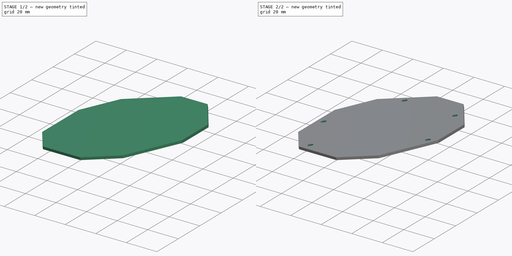
[diagram: build sequence overview — one tinted view per stage of 2, left to right]
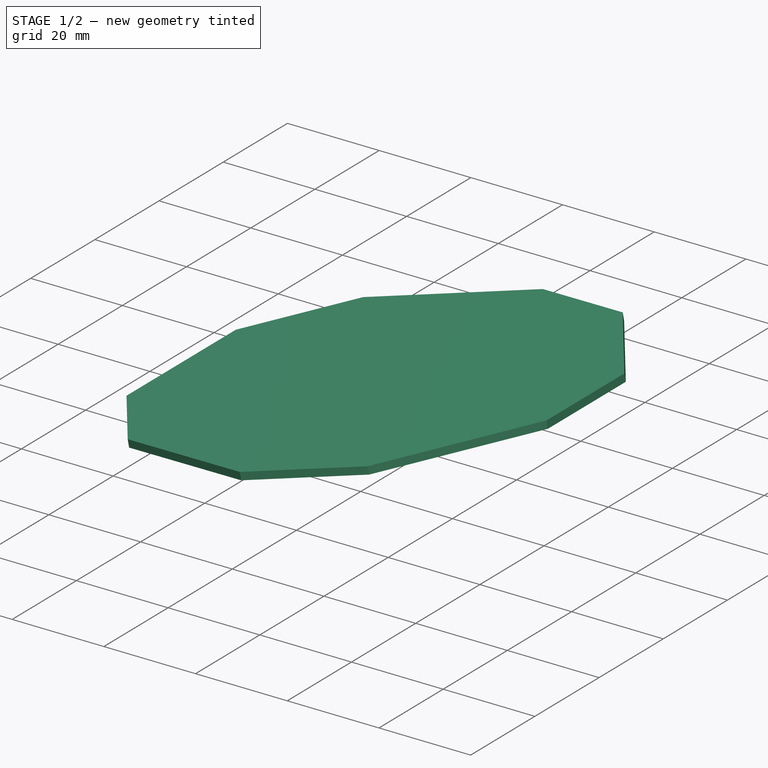
[diagram: stage 1 of 2 — iso view after this stage's code; geometry added in this stage tinted green]
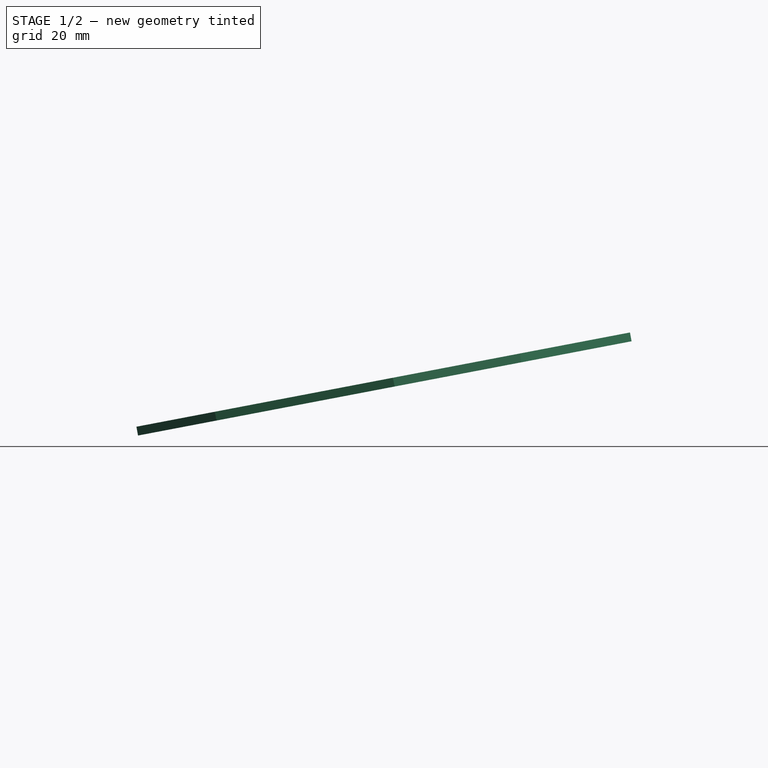
[diagram: stage 1 of 2 — front view after this stage's code; geometry added in this stage tinted green]
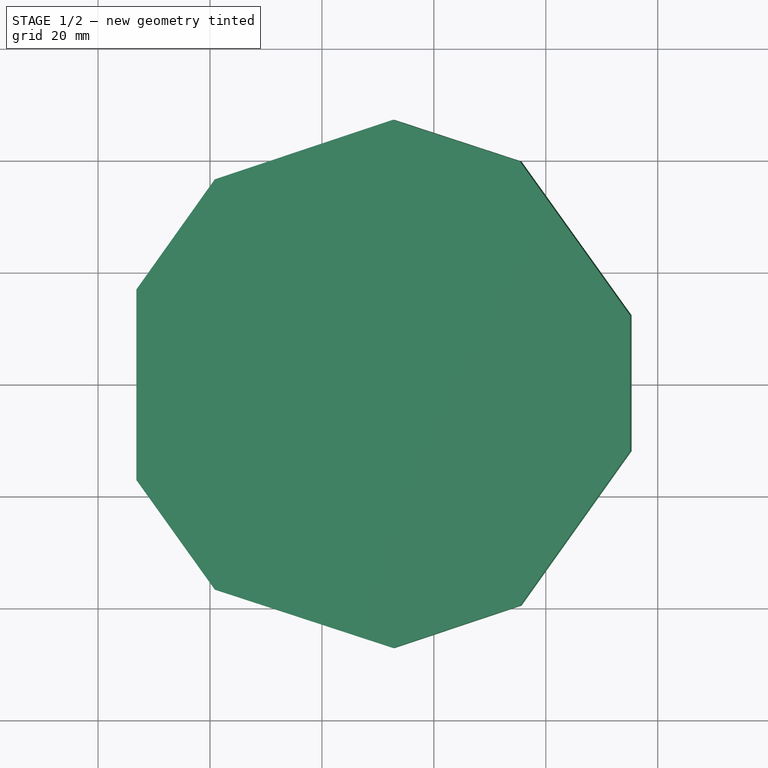
[diagram: stage 1 of 2 — top view after this stage's code; geometry added in this stage tinted green]
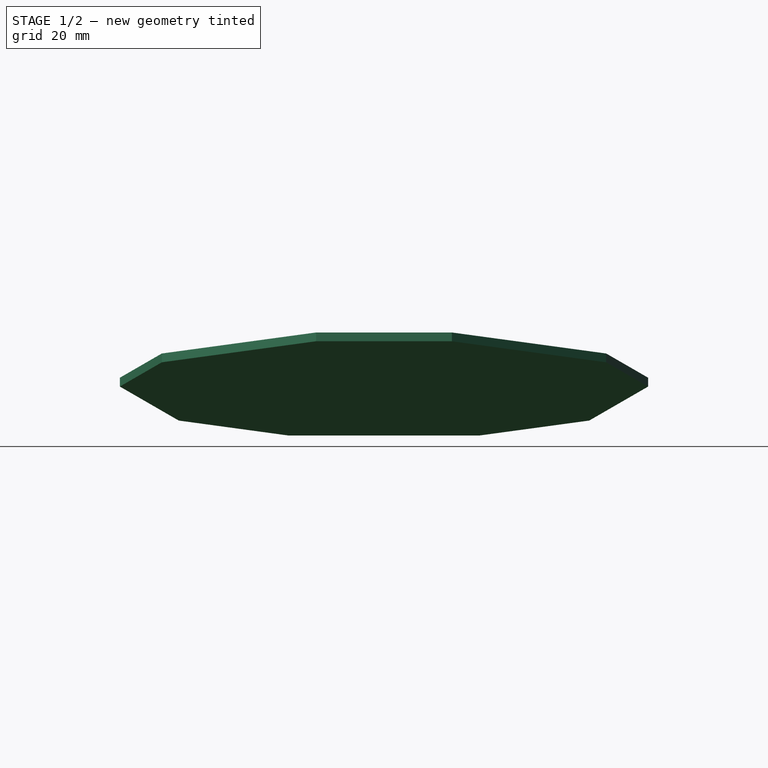
[diagram: stage 1 of 2 — right view after this stage's code; geometry added in this stage tinted green]
FCSTD DOCUMENT  (FreeCAD 0.20R27422 (Git))
Label: inner_assembly
License: All rights reserved
LicenseURL: http://en.wikipedia.org/wiki/All_rights_reserved
objects: App::Link×15, App::DocumentObjectGroup×4, Sketcher::SketchObject×4, PartDesign::SubShapeBinder×3, App::Part×3, PartDesign::CoordinateSystem×1, App::FeaturePython×1, Part::Part2DObjectPython×1, PartDesign::Plane×1, PartDesign::Pad×1, PartDesign::Pocket×1, PartDesign::Body×1
note: 15 computed .brp shape members not serialized (recipe doc carries the construction recipe); baked Part::Feature solids carry a one-line shape summary decoded from their .brp
EXTERNAL_REF file=Inner_rev2.FCStd obj=LCS_1
EXTERNAL_REF file=Inner_rev2.FCStd obj=Part
EXTERNAL_REF file=Inner_rev2.FCStd obj=HoleAxis_3
EXTERNAL_REF file=Inner_rev2.FCStd obj=HoleAxis_2
EXTERNAL_REF file=Inner_rev2.FCStd obj=HoleAxis_10
EXTERNAL_REF file=Inner_rev2.FCStd obj=HoleAxis_19
EXTERNAL_REF file=Inner_rev2.FCStd obj=Part002
EXTERNAL_REF file=Inner_rev2.FCStd obj=HoleAxis_24
EXTERNAL_REF file=Inner_rev2.FCStd obj=Part003
EXTERNAL_REF file=Inner_rev2.FCStd obj=HoleAxis_15
EXTERNAL_REF file=Inner_rev2.FCStd obj=Part001
EXTERNAL_REF file=Inner_rev3.FCStd obj=HoleAxis_3
EXTERNAL_REF file=Inner_rev3.FCStd obj=inner_center_part_rev3

FEATURE [App::DocumentObjectGroup] Parts
FEATURE [PartDesign::CoordinateSystem] LCS_Origin
  AttacherType = Attacher::AttachEngine3D
  MapMode = 2
  Support = -> [X_Axis]
FEATURE [App::FeaturePython] Variables  # WARN: FeaturePython — macro-defined, semantics opaque (R4)
  Type = App::PropertyContainer
FEATURE [App::DocumentObjectGroup] Constraints
FEATURE [App::DocumentObjectGroup] Configurations
FEATURE [App::Link] shell_part
  AssemblyType = Part::Link
  AttachedBy = #LCS_1
  AttachedTo = Parent Assembly#LCS_Origin
  AttachmentOffset = pos=(0,0,0) rot=(-0.57735,-0.57735,0.57735;2.0944rad)
  LinkPlacement = pos=(54.4609,1.74e-14,1.6e-14) rot=(0,-1,0;0.188711rad)
  LinkedObject = -> <external Inner_rev2.FCStd>#Part
  Placement = pos=(54.4609,1.74e-14,1.6e-14) rot=(0,-1,0;0.188711rad)
  SolverId = Asm4EE
  expr: Placement = LCS_Origin.Placement * AttachmentOffset * Inner_rev2#LCS_1.Placement ^ -1
FEATURE [App::Link] shell_part001
  AssemblyType = Part::Link
  AttachedBy = #HoleAxis_3
  AttachedTo = shell_part#HoleAxis_3
  AttachmentOffset = pos=(0,0,0) rot=(1,0,0;3.14159rad)
  LinkPlacement = pos=(54.4609,5.33e-14,7.64e-14) rot=(-0.947228,0.307773,-0.089642;3.08336rad)
  LinkedObject = -> <external Inner_rev2.FCStd>#Part
  Placement = pos=(54.4609,5.33e-14,7.64e-14) rot=(-0.947228,0.307773,-0.089642;3.08336rad)
  SolverId = Asm4EE
  expr: Placement = shell_part.Placement * Inner_rev2#HoleAxis_3.Placement * AttachmentOffset * Inner_rev2#HoleAxis_3.Placement ^ -1
FEATURE [App::Link] shell
  AssemblyType = Part::Link
  AttachedBy = #HoleAxis_2
  AttachedTo = shell_part001#HoleAxis_2
  AttachmentOffset = pos=(0,0,0) rot=(1,0,0;3.14159rad)
  LinkPlacement = pos=(54.4609,7.1e-15,1.146e-13) rot=(0.093433,-0.1286,-0.987285;1.26883rad)
  LinkedObject = -> <external Inner_rev2.FCStd>#Part
  Placement = pos=(54.4609,7.1e-15,1.146e-13) rot=(0.093433,-0.1286,-0.987285;1.26883rad)
  SolverId = Asm4EE
  expr: Placement = shell_part001.Placement * Inner_rev2#HoleAxis_2.Placement * AttachmentOffset * Inner_rev2#HoleAxis_2.Placement ^ -1
FEATURE [App::Link] shell_part002
  AssemblyType = Part::Link
  AttachedBy = #HoleAxis_3
  AttachedTo = shell#HoleAxis_3
  AttachmentOffset = pos=(0,0,0) rot=(1,0,0;3.14159rad)
  LinkPlacement = pos=(54.4609,0,1.811e-13) rot=(-0.586878,0.807768,-0.05554;2.989rad)
  LinkedObject = -> <external Inner_rev2.FCStd>#Part
  Placement = pos=(54.4609,0,1.811e-13) rot=(-0.586878,0.807768,-0.05554;2.989rad)
  SolverId = Asm4EE
  expr: Placement = shell.Placement * Inner_rev2#HoleAxis_3.Placement * AttachmentOffset * Inner_rev2#HoleAxis_3.Placement ^ -1
FEATURE [App::Link] shell_part003
  AssemblyType = Part::Link
  AttachedBy = #HoleAxis_2
  AttachedTo = shell_part002#HoleAxis_2
  AttachmentOffset = pos=(0,0,0) rot=(1,0,0;3.14159rad)
  LinkPlacement = pos=(54.4609,1.42e-14,2.292e-13) rot=(0.094171,-0.030598,-0.995086;2.51616rad)
  LinkedObject = -> <external Inner_rev2.FCStd>#Part
  Placement = pos=(54.4609,1.42e-14,2.292e-13) rot=(0.094171,-0.030598,-0.995086;2.51616rad)
  SolverId = Asm4EE
  expr: Placement = shell_part002.Placement * Inner_rev2#HoleAxis_2.Placement * AttachmentOffset * Inner_rev2#HoleAxis_2.Placement ^ -1
FEATURE [App::Link] shell_part004
  AssemblyType = Part::Link
  AttachedBy = #HoleAxis_3
  AttachedTo = shell_part003#HoleAxis_3
  AttachmentOffset = pos=(0,0,0) rot=(1,0,0;3.14159rad)
  LinkPlacement = pos=(54.4609,-2.13e-14,2.842e-13) rot=(0,1,0;2.95288rad)
  LinkedObject = -> <external Inner_rev2.FCStd>#Part
  Placement = pos=(54.4609,-2.13e-14,2.842e-13) rot=(0,1,0;2.95288rad)
  SolverId = Asm4EE
  expr: Placement = shell_part003.Placement * Inner_rev2#HoleAxis_3.Placement * AttachmentOffset * Inner_rev2#HoleAxis_3.Placement ^ -1
FEATURE [App::Link] shell_part005
  AssemblyType = Part::Link
  AttachedBy = #HoleAxis_2
  AttachedTo = shell_part004#HoleAxis_2
  AttachmentOffset = pos=(0,0,0) rot=(1,0,0;3.14159rad)
  LinkPlacement = pos=(54.4609,3.2e-14,3.375e-13) rot=(0.094171,0.030598,-0.995086;3.76702rad)
  LinkedObject = -> <external Inner_rev2.FCStd>#Part
  Placement = pos=(54.4609,3.2e-14,3.375e-13) rot=(0.094171,0.030598,-0.995086;3.76702rad)
  SolverId = Asm4EE
  expr: Placement = shell_part004.Placement * Inner_rev2#HoleAxis_2.Placement * AttachmentOffset * Inner_rev2#HoleAxis_2.Placement ^ -1
FEATURE [App::Link] shell_part006
  AssemblyType = Part::Link
  AttachedBy = #HoleAxis_3
  AttachedTo = shell_part005#HoleAxis_3
  AttachmentOffset = pos=(0,0,0) rot=(1,0,0;3.14159rad)
  LinkPlacement = pos=(54.4609,7.1e-15,3.961e-13) rot=(0.586878,0.807768,0.05554;2.989rad)
  LinkedObject = -> <external Inner_rev2.FCStd>#Part
  Placement = pos=(54.4609,7.1e-15,3.961e-13) rot=(0.586878,0.807768,0.05554;2.989rad)
  SolverId = Asm4EE
  expr: Placement = shell_part005.Placement * Inner_rev2#HoleAxis_3.Placement * AttachmentOffset * Inner_rev2#HoleAxis_3.Placement ^ -1
FEATURE [App::Link] shell_part007
  AssemblyType = Part::Link
  AttachedBy = #HoleAxis_2
  AttachedTo = shell_part006#HoleAxis_2
  AttachmentOffset = pos=(0,0,0) rot=(1,0,0;3.14159rad)
  LinkPlacement = pos=(54.4609,-1.42e-14,4.545e-13) rot=(0.093433,0.1286,-0.987285;5.01436rad)
  LinkedObject = -> <external Inner_rev2.FCStd>#Part
  Placement = pos=(54.4609,-1.42e-14,4.545e-13) rot=(0.093433,0.1286,-0.987285;5.01436rad)
  SolverId = Asm4EE
  expr: Placement = shell_part006.Placement * Inner_rev2#HoleAxis_2.Placement * AttachmentOffset * Inner_rev2#HoleAxis_2.Placement ^ -1
FEATURE [App::Link] shell_part008
  AssemblyType = Part::Link
  AttachedBy = #HoleAxis_3
  AttachedTo = shell_part007#HoleAxis_3
  AttachmentOffset = pos=(0,0,0) rot=(1,0,0;3.14159rad)
  LinkPlacement = pos=(54.4609,2.84e-14,5.125e-13) rot=(0.947228,0.307773,0.089642;3.08336rad)
  LinkedObject = -> <external Inner_rev2.FCStd>#Part
  Placement = pos=(54.4609,2.84e-14,5.125e-13) rot=(0.947228,0.307773,0.089642;3.08336rad)
  SolverId = Asm4EE
  expr: Placement = shell_part007.Placement * Inner_rev2#HoleAxis_3.Placement * AttachmentOffset * Inner_rev2#HoleAxis_3.Placement ^ -1
FEATURE [App::Link] inner_left_part
  AssemblyType = Part::Link
  AttachedBy = #HoleAxis_19
  AttachedTo = shell_part005#HoleAxis_10
  AttachmentOffset = pos=(0,0,0) rot=(0,-1,0;3.14159rad)
  LinkPlacement = pos=(54.4609,3.55e-14,3.482e-13) rot=(-0.094171,-0.030598,0.995086;2.51616rad)
  LinkedObject = -> <external Inner_rev2.FCStd>#Part002
  Placement = pos=(54.4609,3.55e-14,3.482e-13) rot=(-0.094171,-0.030598,0.995086;2.51616rad)
  SolverId = Asm4EE
  expr: Placement = shell_part005.Placement * Inner_rev2#HoleAxis_10.Placement * AttachmentOffset * Inner_rev2#HoleAxis_19.Placement ^ -1
FEATURE [App::Link] inner_right_part
  AssemblyType = Part::Link
  AttachedBy = #HoleAxis_24
  AttachedTo = shell_part007#HoleAxis_10
  AttachmentOffset = pos=(0,0,0) rot=(0,-1,0;3.14159rad)
  LinkPlacement = pos=(54.4609,0,4.512e-13) rot=(-0.093433,-0.1286,0.987285;1.26883rad)
  LinkedObject = -> <external Inner_rev2.FCStd>#Part003
  Placement = pos=(54.4609,0,4.512e-13) rot=(-0.093433,-0.1286,0.987285;1.26883rad)
  SolverId = Asm4EE
  expr: Placement = shell_part007.Placement * Inner_rev2#HoleAxis_10.Placement * AttachmentOffset * Inner_rev2#HoleAxis_24.Placement ^ -1
FEATURE [App::Link] inner_center_part001
  AssemblyType = Part::Link
  AttachedBy = #HoleAxis_15
  AttachedTo = shell_part003#HoleAxis_10
  AttachmentOffset = pos=(0,0,0) rot=(0,-1,0;3.14159rad)
  LinkPlacement = pos=(54.4609,3.2e-14,2.38e-13) rot=(-0.094171,0.030598,0.995086;3.76702rad)
  LinkedObject = -> <external Inner_rev2.FCStd>#Part001
  Placement = pos=(54.4609,3.2e-14,2.38e-13) rot=(-0.094171,0.030598,0.995086;3.76702rad)
  SolverId = Asm4EE
  expr: Placement = shell_part003.Placement * Inner_rev2#HoleAxis_10.Placement * AttachmentOffset * Inner_rev2#HoleAxis_15.Placement ^ -1
FEATURE [App::Link] inner_center_part002
  AssemblyType = Part::Link
  AttachedBy = #HoleAxis_15
  AttachedTo = shell_part#HoleAxis_10
  AttachmentOffset = pos=(0,0,0) rot=(0,1,0;3.14159rad)
  LinkPlacement = pos=(54.4609,1.74e-14,1.6e-14) rot=(0,-1,0;0.188711rad)
  LinkedObject = -> <external Inner_rev2.FCStd>#Part001
  Placement = pos=(54.4609,1.74e-14,1.6e-14) rot=(0,-1,0;0.188711rad)
  SolverId = Asm4EE
  expr: Placement = shell_part.Placement * Inner_rev2#HoleAxis_10.Placement * AttachmentOffset * Inner_rev2#HoleAxis_15.Placement ^ -1
FEATURE [Part::Part2DObjectPython] Polygon  # Draft 2D object (typed FeaturePython)
  Area = 0
  ChamferSize = 0
  DrawMode = 0
  FacesNumber = 5
  FilletRadius = 0
  MakeFace = false
  Placement = pos=(53.043,-0.077,9.961) rot=(-0.072027,-0.702263,0.708265;0.001571rad)
  Radius = 54.1
FEATURE [App::DocumentObjectGroup] Draft_Construction  label="Construction"
  Group = -> [Polygon]
FEATURE [PartDesign::SubShapeBinder] Binder
  BindCopyOnChange = 0
  BindMode = 0
  ClaimChildren = false
  Context = -> Part001 [Part.Body.Binder.]
  Fuse = false
  MakeFace = true
  PartialLoad = false
  Relative = true
  Support = -> [Assembly[inner_center_part001.Chamfer001.Face39]]
  _Version = 2
FEATURE [PartDesign::Plane] DatumPlane
  Length = 228.829
  MapMode = 45
  Placement = pos=(83.1971,24.2199,27.239) rot=(-0.094107,-0.04795,0.994407;2.20364rad)
  ResizeMode = 0
  Support = -> [Binder]
  Width = 232.594
FEATURE [PartDesign::SubShapeBinder] Binder001
  BindCopyOnChange = 0
  BindMode = 0
  ClaimChildren = false
  Context = -> Part001 [Part.Body.Binder001.]
  Fuse = false
  MakeFace = true
  PartialLoad = false
  Relative = true
  Support = -> [Assembly[inner_center_part002.Chamfer001.Face39,inner_center_part.Chamfer001.Face39,inner_center_part001.Chamfer001.Face39,inner_left_part.Chamfer003.Face39,inner_right_part.Chamfer002.Face39]]
  _Version = 2
FEATURE [Sketcher::SketchObject] Sketch
  ExternalGeometry = -> [Binder001]
  FullyConstrained = false
  MapMode = 5
  Placement = pos=(83.1971,24.2199,27.239) rot=(-0.094107,-0.04795,0.994407;2.20364rad)
  Support = -> [DatumPlane]
  sketch-geometry (25):
    g0: LineSegment StartX=33.5481 StartY=30.3049 StartZ=0 EndX=-94.9458 EndY=72.0551 EndZ=0
    g1: LineSegment StartX=20.7339 StartY=69.7431 StartZ=0 EndX=-41.6508 EndY=-16.1221 EndZ=0
    g2: GeomPoint X=1.9647e-12 Y=41.2054 Z=0
    g3: LineSegment StartX=33.5481 StartY=30.3049 StartZ=0 EndX=45.3819 EndY=26.4599 EndZ=0
    g4: Circle CenterX=1.9647e-12 CenterY=41.2054 CenterZ=0 NormalX=0 NormalY=0 NormalZ=1 AngleXU=0 Radius=54.5
    g5: LineSegment StartX=4.9063e-12 StartY=95.7054 StartZ=0 EndX=-12.1353 EndY=86.8886 EndZ=0
    g6: LineSegment StartX=12.1353 StartY=86.8886 StartZ=0 EndX=4.9063e-12 EndY=95.7054 EndZ=0
    g7: LineSegment StartX=-12.1353 StartY=86.8886 StartZ=0 EndX=12.1353 EndY=86.8886 EndZ=0
    g8: LineSegment StartX=51.8326 StartY=58.0468 StartZ=0 EndX=39.6973 EndY=66.8636 EndZ=0
    g9: LineSegment StartX=39.6973 StartY=66.8636 StartZ=0 EndX=12.1353 EndY=86.8886 EndZ=0
    g10: LineSegment StartX=47.1973 StartY=43.7809 StartZ=0 EndX=51.8326 EndY=58.0468 EndZ=0
    g11: LineSegment StartX=-12.1353 StartY=86.8886 StartZ=0 EndX=-39.6973 EndY=66.8636 EndZ=0
    g12: LineSegment StartX=-39.6973 StartY=66.8636 StartZ=0 EndX=-51.8326 EndY=58.0468 EndZ=0
    g13: LineSegment StartX=-51.8326 StartY=58.0468 StartZ=0 EndX=-47.1973 EndY=43.7809 EndZ=0
    g14: LineSegment StartX=-47.1973 StartY=43.7809 StartZ=0 EndX=-36.6696 EndY=11.3798 EndZ=0
    g15: LineSegment StartX=-36.6696 StartY=11.3798 StartZ=0 EndX=-32.0343 EndY=-2.88606 EndZ=0
    g16: LineSegment StartX=-32.0343 StartY=-2.88606 StartZ=0 EndX=-17.0343 EndY=-2.88606 EndZ=0
    g17: LineSegment StartX=-17.0343 StartY=-2.88606 StartZ=0 EndX=17.0343 EndY=-2.88606 EndZ=0
    g18: LineSegment StartX=17.0343 StartY=-2.88606 StartZ=0 EndX=32.0343 EndY=-2.88606 EndZ=0
    g19: LineSegment StartX=32.0343 StartY=-2.88606 StartZ=0 EndX=36.6696 EndY=11.3798 EndZ=0
    g20: LineSegment StartX=36.6696 StartY=11.3798 StartZ=0 EndX=47.1973 EndY=43.7809 EndZ=0
    g21: LineSegment StartX=39.6973 StartY=66.8636 StartZ=0 EndX=47.1973 EndY=43.7809 EndZ=0
    g22: LineSegment StartX=-39.6973 StartY=66.8636 StartZ=0 EndX=-47.1973 EndY=43.7809 EndZ=0
    g23: LineSegment StartX=-36.6696 StartY=11.3798 StartZ=0 EndX=-17.0343 EndY=-2.88606 EndZ=0
    g24: LineSegment StartX=17.0343 StartY=-2.88606 StartZ=0 EndX=36.6696 EndY=11.3798 EndZ=0
  constraints (62):
    c: PointOnObject(g2,g0)
    c: PointOnObject(g2,g1)
    c: Coincident(g3,g0)
    c: Parallel(g0,g3)
    c: Coincident(g15,g16)
    c: Coincident(g18,g19)
    c: Coincident(g10,g8)
    c: Coincident(g6,g5)
    c: Coincident(g12,g13)
    c: PointOnObject(g15,g4)
    c: PointOnObject(g18,g4)
    c: PointOnObject(g10,g4)
    c: PointOnObject(g6,g4)
    c: PointOnObject(g12,g4)
    c: Coincident(g4,g2)
    c: PointOnObject(g12,g0)
    c: Distance(g2,g13) = 54.5
    c: Coincident(g5,g11)
    c: PointOnObject(g15,g1)
    c: Coincident(g9,g6)
    c: Equal(g6,g5)
    c: Coincident(g7,g9)
    c: Horizontal(g7)
    c: Coincident(g8,g9)
    c: Parallel(g6,g8)
    c: Parallel(g6,g9)
    c: Coincident(g20,g10)
    c: Coincident(g11,g12)
    c: Parallel(g5,g11)
    c: Parallel(g5,g12)
    c: PointOnObject(g7,g11)
    c: Coincident(g13,g14)
    c: Coincident(g14,g15)
    c: Coincident(g16,g17)
    c: Coincident(g17,g18)
    c: Coincident(g19,g20)
    c: Parallel(g13,g14)
    c: Parallel(g14,g15)
    c: Parallel(g16,g17)
    c: Parallel(g17,g18)
    c: Parallel(g19,g20)
    c: Parallel(g20,g10)
    c: Equal(g16,g15)
    c: Equal(g15,g13)
    c: Equal(g13,g12)
    c: Equal(g12,g5)
    c: Equal(g6,g8)
    c: Equal(g8,g10)
    c: Equal(g10,g19)
    c: Equal(g19,g18)
    c: Equal(g9,g20)
    c: Equal(g20,g17)
    c: Equal(g17,g14)
    c: Distance(g5) = 15
    c: Coincident(g21,g9)
    c: Coincident(g21,g20)
    c: Coincident(g22,g14)
    c: Coincident(g23,g14)
    c: Coincident(g23,g17)
    c: Coincident(g24,g17)
    c: Coincident(g24,g20)
    c: Coincident(g22,g11)
FEATURE [PartDesign::Pad] Pad
  Direction = (-0.187592,-2e-16,0.982247)
  Length = 1.6
  Length2 = 10
  Placement = pos=(83.1971,24.2199,27.239) rot=(-0.094107,-0.04795,0.994407;2.20364rad)
  Profile = -> Sketch
  ReferenceAxis = -> Sketch [N_Axis]
  Type = 0
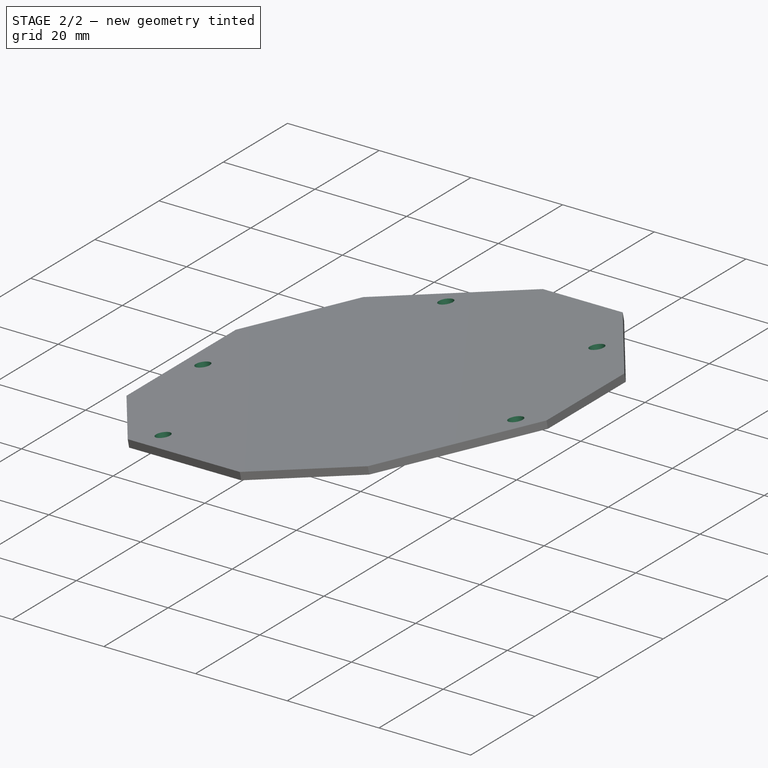
[diagram: stage 2 of 2 — iso view after this stage's code; geometry added in this stage tinted green]
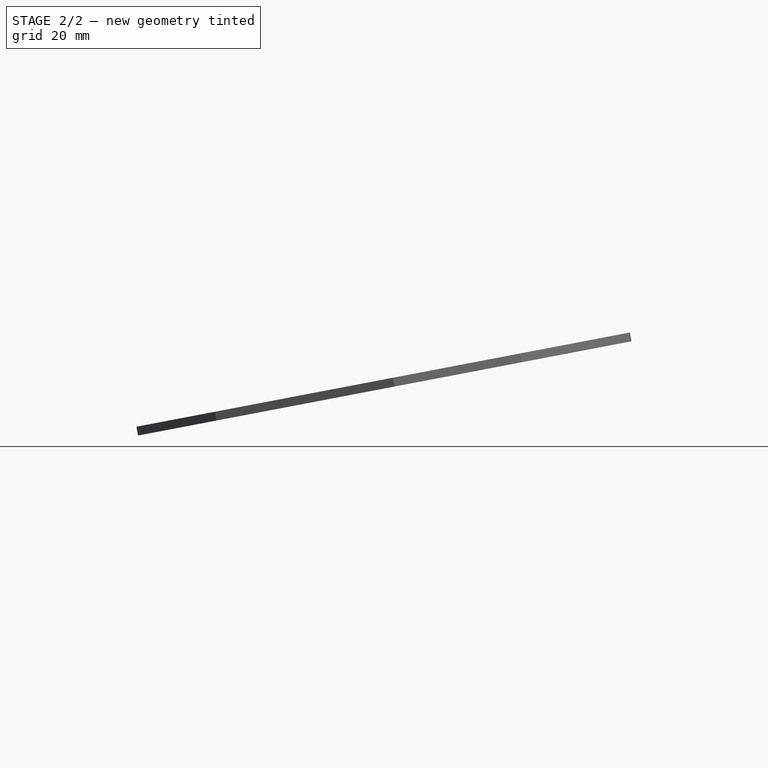
[diagram: stage 2 of 2 — front view after this stage's code; geometry added in this stage tinted green]
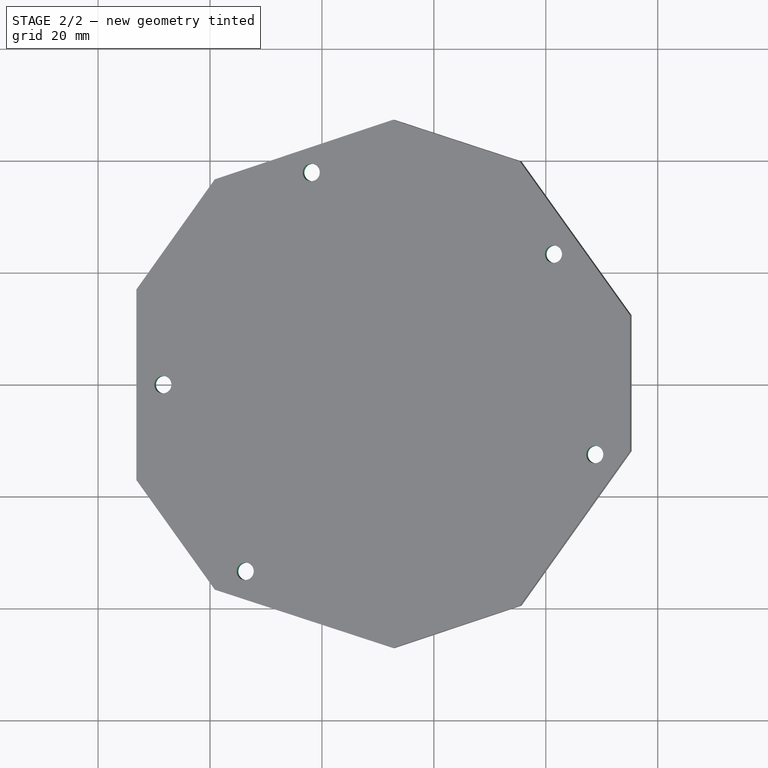
[diagram: stage 2 of 2 — top view after this stage's code; geometry added in this stage tinted green]
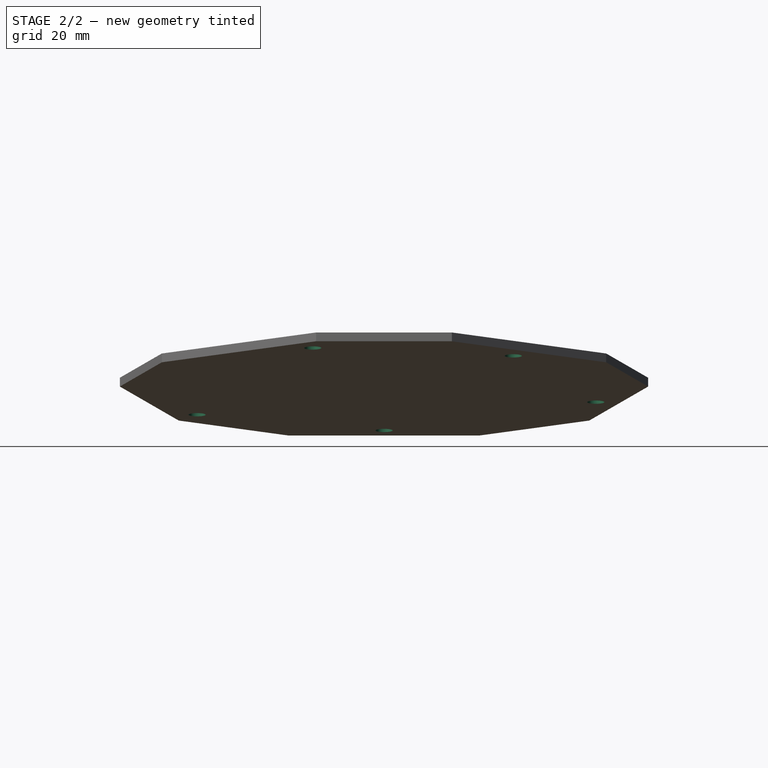
[diagram: stage 2 of 2 — right view after this stage's code; geometry added in this stage tinted green]
FEATURE [App::Link] inner_center_part_rev3
  AssemblyType = Part::Link
  AttachedBy = #HoleAxis_3
  AttachedTo = shell#HoleAxis_10
  AttachmentOffset = pos=(0,0,0) rot=(0,-1,0;3.14159rad)
  LinkPlacement = pos=(54.4609,2.13e-14,1.252e-13) rot=(-0.093433,0.1286,0.987285;5.01436rad)
  LinkedObject = -> <external Inner_rev3.FCStd>#inner_center_part_rev3
  Placement = pos=(54.4609,2.13e-14,1.252e-13) rot=(-0.093433,0.1286,0.987285;5.01436rad)
  SolverId = Asm4EE
  expr: Placement = shell.Placement * Inner_rev2#HoleAxis_10.Placement * AttachmentOffset * Inner_rev3#HoleAxis_3.Placement ^ -1
FEATURE [App::Part] Assembly
  AssemblyType = Part::Link
  Group = -> [LCS_Origin,Variables,Constraints,Configurations,shell_part,shell_part001,shell,shell_part002,shell_part003,shell_part004,shell_part005,shell_part006,shell_part007,shell_part008,inner_left_part,inner_right_part,inner_center_part001,inner_center_part002,inner_center_part_rev3]
  Origin = -> Origin
  Type = Assembly
FEATURE [PartDesign::SubShapeBinder] Binder002
  BindCopyOnChange = 0
  BindMode = 0
  ClaimChildren = false
  Context = -> Part001 [Part.Body.Binder002.]
  Fuse = false
  MakeFace = true
  PartialLoad = false
  Relative = true
  Support = -> [Assembly[inner_center_part_rev3.Chamfer001.Face39,inner_center_part002.Chamfer001.Face39,inner_right_part.Chamfer002.Face39,inner_left_part.Chamfer003.Face39,inner_center_part001.Chamfer001.Face39]]
  _Version = 2
FEATURE [Sketcher::SketchObject] Sketch001
  ExternalGeometry = -> [Binder002]
  FullyConstrained = true
  MapMode = 5
  Placement = pos=(82.8969,24.2199,28.8106) rot=(-0.094107,-0.04795,0.994407;2.20364rad)
  Support = -> [Pad]
  sketch-geometry (5):
    g0: Circle CenterX=-12.7398 CenterY=80.4954 CenterZ=0 NormalX=0 NormalY=0 NormalZ=1 AngleXU=0 Radius=1.55
    g1: Circle CenterX=23.085 CenterY=72.9792 CenterZ=0 NormalX=0 NormalY=0 NormalZ=1 AngleXU=0 Radius=1.55
    g2: Circle CenterX=37.8279 CenterY=28.9144 CenterZ=0 NormalX=0 NormalY=0 NormalZ=1 AngleXU=0 Radius=1.55
    g3: Circle CenterX=8.53e-14 CenterY=1.93081 CenterZ=0 NormalX=0 NormalY=0 NormalZ=1 AngleXU=0 Radius=1.55
    g4: Circle CenterX=-33.4008 CenterY=16.9073 CenterZ=0 NormalX=0 NormalY=0 NormalZ=1 AngleXU=0 Radius=1.55
  constraints (10):
    c: Coincident(g0,g-7)
    c: Coincident(g1,g-6)
    c: Coincident(g2,g-5)
    c: Coincident(g3,g-4)
    c: Coincident(g4,g-3)
    c: Equal(g4,g3)
    c: Equal(g3,g2)
    c: Equal(g2,g1)
    c: Equal(g1,g0)
    c: Diameter(g0) = 3.1
FEATURE [PartDesign::Pocket] Pocket
  BaseFeature = -> Pad
  Direction = (0.187592,3e-16,-0.982247)
  Length = 5
  Length2 = 5
  Placement = pos=(83.1971,24.2199,27.239) rot=(-0.094107,-0.04795,0.994407;2.20364rad)
  Profile = -> Sketch001
  ReferenceAxis = -> Sketch001 [N_Axis]
  Type = 0
FEATURE [Sketcher::SketchObject] Sketch002
  ExternalGeometry = -> [Pocket]
  FullyConstrained = true
  MapMode = 5
  Placement = pos=(82.8969,24.2199,28.8106) rot=(-0.094107,-0.04795,0.994407;2.20364rad)
  Support = -> [Pocket]
  sketch-geometry (15):
    g0: LineSegment StartX=47.1973 StartY=43.7809 StartZ=0 EndX=36.6696 EndY=11.3798 EndZ=0
    g1: LineSegment StartX=36.6696 StartY=11.3798 StartZ=0 EndX=17.0343 EndY=-2.88606 EndZ=0
    g2: LineSegment StartX=17.0343 StartY=-2.88606 StartZ=0 EndX=-17.0343 EndY=-2.88606 EndZ=0
    g3: LineSegment StartX=-17.0343 StartY=-2.88606 StartZ=0 EndX=-36.6696 EndY=11.3798 EndZ=0
    g4: LineSegment StartX=-36.6696 StartY=11.3798 StartZ=0 EndX=-47.1973 EndY=43.7809 EndZ=0
    g5: LineSegment StartX=-47.1973 StartY=43.7809 StartZ=0 EndX=-39.6973 EndY=66.8636 EndZ=0
    g6: LineSegment StartX=-39.6973 StartY=66.8636 StartZ=0 EndX=-12.1353 EndY=86.8886 EndZ=0
    g7: LineSegment StartX=-12.1353 StartY=86.8886 StartZ=0 EndX=12.1353 EndY=86.8886 EndZ=0
    g8: LineSegment StartX=12.1353 StartY=86.8886 StartZ=0 EndX=39.6973 EndY=66.8636 EndZ=0
    g9: LineSegment StartX=39.6973 StartY=66.8636 StartZ=0 EndX=47.1973 EndY=43.7809 EndZ=0
    g10: Circle CenterX=37.8279 CenterY=28.9144 CenterZ=0 NormalX=0 NormalY=0 NormalZ=1 AngleXU=0 Radius=1.5
    g11: Circle CenterX=8.17e-14 CenterY=1.93081 CenterZ=0 NormalX=0 NormalY=0 NormalZ=1 AngleXU=0 Radius=1.5
    g12: Circle CenterX=-33.4008 CenterY=16.9073 CenterZ=0 NormalX=0 NormalY=0 NormalZ=1 AngleXU=0 Radius=1.5
    g13: Circle CenterX=-12.7398 CenterY=80.4954 CenterZ=0 NormalX=0 NormalY=0 NormalZ=1 AngleXU=0 Radius=1.5
    g14: Circle CenterX=23.085 CenterY=72.9792 CenterZ=0 NormalX=0 NormalY=0 NormalZ=1 AngleXU=0 Radius=1.5
  constraints (30):
    c: Coincident(g-4,g0)
    c: Coincident(g0,g-5)
    c: Coincident(g0,g1)
    c: Coincident(g1,g-5)
    c: Coincident(g1,g2)
    c: Coincident(g2,g-6)
    c: Coincident(g2,g3)
    c: Coincident(g3,g-6)
    c: Coincident(g3,g4)
    c: Coincident(g4,g-7)
    c: Coincident(g4,g5)
    c: Coincident(g5,g-7)
    c: Coincident(g5,g6)
    c: Coincident(g6,g-3)
    c: Coincident(g6,g7)
    c: Coincident(g7,g-3)
    c: Coincident(g7,g8)
    c: Coincident(g8,g-4)
    c: Coincident(g8,g9)
    c: Coincident(g9,g0)
    c: Coincident(g10,g-8)
    c: Coincident(g11,g-9)
    c: Coincident(g12,g-12)
    c: Coincident(g13,g-11)
    c: Coincident(g14,g-10)
    c: Equal(g14,g10)
    c: Equal(g10,g11)
    c: Equal(g11,g12)
    c: Equal(g12,g13)
    c: Diameter(g14) = 3
FEATURE [Sketcher::SketchObject] Sketch003
  ExternalGeometry = -> [Binder002]
  FullyConstrained = true
  MapMode = 5
  Placement = pos=(82.8969,24.2199,28.8106) rot=(-0.094107,-0.04795,0.994407;2.20364rad)
  Support = -> [Pocket]
  sketch-geometry (20):
    g0: LineSegment StartX=-4 StartY=5.93081 StartZ=0 EndX=4 EndY=5.93081 EndZ=0
    g1: LineSegment StartX=4 StartY=5.93081 StartZ=0 EndX=4 EndY=-5.06919 EndZ=0
    g2: LineSegment StartX=4 StartY=-5.06919 StartZ=0 EndX=-4 EndY=-5.06919 EndZ=0
    g3: LineSegment StartX=-4 StartY=-5.06919 StartZ=0 EndX=-4 EndY=5.93081 EndZ=0
    g4: LineSegment StartX=34.2141 StartY=25.8827 StartZ=0 EndX=36.6863 EndY=33.4911 EndZ=0
    g5: LineSegment StartX=36.6863 StartY=33.4911 StartZ=0 EndX=45.2458 EndY=30.71 EndZ=0
    g6: LineSegment StartX=45.2458 StartY=30.71 StartZ=0 EndX=42.7736 EndY=23.1015 EndZ=0
    g7: LineSegment StartX=42.7736 StartY=23.1015 StartZ=0 EndX=34.2141 EndY=25.8827 EndZ=0
    g8: LineSegment StartX=30.4356 StartY=76.2911 StartZ=0 EndX=23.9699 EndY=67.3919 EndZ=0
    g9: LineSegment StartX=23.9699 StartY=67.3919 StartZ=0 EndX=17.4978 EndY=72.0942 EndZ=0
    g10: LineSegment StartX=17.4978 StartY=72.0942 StartZ=0 EndX=23.9634 EndY=80.9934 EndZ=0
    g11: LineSegment StartX=23.9634 StartY=80.9934 StartZ=0 EndX=30.4356 EndY=76.2911 EndZ=0
    g12: LineSegment StartX=-7.15256 StartY=79.6105 StartZ=0 EndX=-13.6247 EndY=74.9082 EndZ=0
    g13: LineSegment StartX=-13.6247 StartY=74.9082 StartZ=0 EndX=-20.0903 EndY=83.8074 EndZ=0
    g14: LineSegment StartX=-20.0903 StartY=83.8074 StartZ=0 EndX=-13.6182 EndY=88.5097 EndZ=0
    g15: LineSegment StartX=-13.6182 StartY=88.5097 StartZ=0 EndX=-7.15256 EndY=79.6105 EndZ=0
    g16: LineSegment StartX=-30.8326 StartY=21.9476 StartZ=0 EndX=-28.3605 EndY=14.3392 EndZ=0
    g17: LineSegment StartX=-28.3605 StartY=14.3392 StartZ=0 EndX=-38.8221 EndY=10.94 EndZ=0
    g18: LineSegment StartX=-38.8221 StartY=10.94 StartZ=0 EndX=-41.2943 EndY=18.5484 EndZ=0
    g19: LineSegment StartX=-41.2943 StartY=18.5484 StartZ=0 EndX=-30.8326 EndY=21.9476 EndZ=0
  constraints (40):
    c: Coincident(g-10,g0)
    c: Coincident(g0,g-10)
    c: Coincident(g0,g1)
    c: Coincident(g1,g-9)
    c: Coincident(g1,g2)
    c: Coincident(g2,g-9)
    c: Coincident(g2,g3)
    c: Coincident(g3,g0)
    c: Coincident(g-8,g4)
    c: Coincident(g4,g-8)
    c: Coincident(g4,g5)
    c: Coincident(g5,g-7)
    c: Coincident(g5,g6)
    c: Coincident(g6,g-7)
    c: Coincident(g6,g7)
    c: Coincident(g7,g4)
    c: Coincident(g-5,g8)
    c: Coincident(g8,g-6)
    c: Coincident(g8,g9)
    c: Coincident(g9,g-6)
    c: Coincident(g9,g10)
    c: Coincident(g10,g-5)
    c: Coincident(g10,g11)
    c: Coincident(g11,g8)
    c: Coincident(g-4,g12)
    c: Coincident(g12,g-4)
    c: Coincident(g12,g13)
    c: Coincident(g13,g-3)
    c: Coincident(g13,g14)
    c: Coincident(g14,g-3)
    c: Coincident(g14,g15)
    c: Coincident(g15,g12)
    c: Coincident(g-11,g16)
    c: Coincident(g16,g-11)
    c: Coincident(g16,g17)
    c: Coincident(g17,g-12)
    c: Coincident(g17,g18)
    c: Coincident(g18,g-12)
    c: Coincident(g18,g19)
    c: Coincident(g19,g16)
FEATURE [PartDesign::Body] Body
  Group = -> [Binder,DatumPlane,Binder001,Sketch,Pad,Binder002,Sketch001,Pocket,Sketch002,Sketch003]
  Origin = -> Origin002
  Tip = -> Pocket
FEATURE [App::Part] Part
  Group = -> [Body]
  Origin = -> Origin001
FEATURE [App::Part] Part001
  Group = -> [Parts,Assembly,Polygon,Draft_Construction,Part]
  Origin = -> Origin003
  Placement = pos=(-15.6372,19.6365,14.622) rot=(0.080972,0.511239,-0.855616;0.366079rad)

RESOLVED EXTERNAL PARTS (link-assembly join: the EXTERNAL_REF files above that resolve inside this repo's crawl, each included once):
---- part Inner_rev2.FCStd = doc fcstd_6d52c8a6ff96 ----
FCSTD DOCUMENT  (FreeCAD 0.20R27422 (Git))
Label: Inner_rev2
License: All rights reserved
LicenseURL: http://en.wikipedia.org/wiki/All_rights_reserved
objects: PartDesign::Line×25, Part::Feature×5, App::Part×5, Part::Chamfer×4, Part::Part2DObjectPython×1, PartDesign::CoordinateSystem×1
note: 36 computed .brp shape members not serialized (recipe doc carries the construction recipe); baked Part::Feature solids carry a one-line shape summary decoded from their .brp

FEATURE [Part::Part2DObjectPython] Line  # Draft 2D object (typed FeaturePython)
  Area = 0
  ChamferSize = 0
  Closed = false
  End = (-60.4609,0,-2.48e-14)
  FilletRadius = 0
  Length = 60.4609
  MakeFace = true
  Points = (2) [(0,0,0),(-60.4609,0,-2.4803e-14)]
  Start = (0,0,0)
  Subdivisions = 0
FEATURE [Part::Feature] Shape  label="shell"
  Placement = pos=(0,0,0) rot=(0,1,0;0.188711rad)
  shape: bbox 26.49 x 83.96 x 75.99 mm, 229 faces (baked)
FEATURE [Part::Feature] Shape001  label="pcb"
  Placement = pos=(0,0,0) rot=(0,1,0;0.188711rad)
  shape: bbox 11.8 x 62.95 x 53.85 mm, 64 faces (baked)
FEATURE [Part::Feature] Shape002
  shape: bbox 23.55 x 50.22 x 45.04 mm, 88 faces (baked)
FEATURE [Part::Feature] Shape003
  shape: bbox 23.55 x 50.22 x 45.04 mm, 88 faces (baked)
FEATURE [Part::Feature] Shape004
  shape: bbox 23.55 x 50.22 x 45.04 mm, 88 faces (baked)
FEATURE [Part::Chamfer] Chamfer
  Base = -> Shape002
  Edges = 6 edges r=0.7: [Edge84,Edge94,Edge102,Edge112,Edge122,Edge128]
FEATURE [Part::Chamfer] Chamfer001  label="inner_center_rev2"
  Base = -> Chamfer
  Edges = 4 edges r=0.7: [Edge57,Edge71,Edge76,Edge118]
FEATURE [Part::Chamfer] Chamfer002  label="inner_right_rev2"
  Base = -> Shape004
  Edges = 10 edges r=0.7: [Edge69,Edge71,Edge75,Edge88,Edge89,Edge102,Edge112,Edge114,Edge122,Edge128]
FEATURE [Part::Chamfer] Chamfer003  label="inner_left_rev2"
  Base = -> Shape003
  Edges = 10 edges r=0.7: [Edge69,Edge71,Edge75,Edge84,Edge94,Edge102,Edge105,Edge114,Edge122,Edge126]
FEATURE [App::Part] Part004  label="pcb_part"
  Group = -> [Shape001]
  Origin = -> Origin004
FEATURE [PartDesign::Line] HoleAxis_1  label="top_center_magnet_axis"
  AttacherType = Attacher::AttachEngineLine
  Length = 7.89078
  MapMode = 19
  Placement = pos=(-61.4889,0,38.0022) rot=(0,1,0;3.69517rad)
  ResizeMode = 1
  Support = -> [Shape]
FEATURE [PartDesign::Line] HoleAxis_2  label="left_center_magnet_axis"
  AttacherType = Attacher::AttachEngineLine
  Length = 7.8873
  MapMode = 19
  Placement = pos=(-68.7467,-22.3371,-8.2e-15) rot=(-0.076899,0.485523,0.870835;3.41572rad)
  ResizeMode = 1
  Support = -> [Shape]
FEATURE [PartDesign::Line] HoleAxis_3  label="right_center_magnet_axis"
  AttacherType = Attacher::AttachEngineLine
  Length = 7.8873
  MapMode = 19
  Placement = pos=(-68.7467,22.3371,-2.74e-14) rot=(-0.076899,-0.485523,0.870835;2.86747rad)
  ResizeMode = 1
  Support = -> [Shape]
FEATURE [PartDesign::Line] HoleAxis_4  label="top_left_magnet_axis"
  AttacherType = Attacher::AttachEngineLine
  Length = 7.89078
  MapMode = 19
  Placement = pos=(-57.7484,-24.8267,35.6905) rot=(0,1,0;3.69517rad)
  ResizeMode = 1
  Support = -> [Shape]
FEATURE [PartDesign::Line] HoleAxis_5  label="left_right_magnet_axis"
  AttacherType = Attacher::AttachEngineLine
  Length = 7.8873
  MapMode = 19
  Placement = pos=(-68.598,-8.56496,-21.1189) rot=(-0.076899,0.485523,0.870835;3.41572rad)
  ResizeMode = 1
  Support = -> [Shape]
FEATURE [PartDesign::Line] HoleAxis_6  label="right_top_magnet_axis"
  AttacherType = Attacher::AttachEngineLine
  Length = 7.8873
  MapMode = 19
  Placement = pos=(-60.5313,33.3917,21.1189) rot=(-0.076899,-0.485523,0.870835;2.86747rad)
  ResizeMode = 1
  Support = -> [Shape]
FEATURE [PartDesign::Line] HoleAxis_7  label="flat_top_left_magnet_axis"
  AttacherType = Attacher::AttachEngineLine
  Length = 7.32715
  MapMode = 19
  Placement = pos=(-51.1858,-21.3123,22.3027) rot=(0,-1,0;1.38209rad)
  ResizeMode = 1
  Support = -> [Shape]
FEATURE [PartDesign::Line] HoleAxis_8  label="flat_top_right_magnet_axis"
  AttacherType = Attacher::AttachEngineLine
  Length = 7.32715
  MapMode = 19
  Placement = pos=(-51.1858,21.3123,22.3027) rot=(0,-1,0;1.38209rad)
  ResizeMode = 1
  Support = -> [Shape]
FEATURE [PartDesign::Line] HoleAxis_9  label="flat_bottom_magnet_axis"
  AttacherType = Attacher::AttachEngineLine
  Length = 7.32715
  MapMode = 19
  Placement = pos=(-58.1106,-1.2e-14,-13.956) rot=(0,-1,0;1.38209rad)
  ResizeMode = 1
  Support = -> [Shape]
FEATURE [PartDesign::Line] HoleAxis_10  label="flat_center_magnet_axis"
  AttacherType = Attacher::AttachEngineLine
  Length = 7.32715
  MapMode = 19
  Placement = pos=(-53.4941,-5e-15,10.2165) rot=(0,-1,0;1.38209rad)
  ResizeMode = 1
  Support = -> [Shape]
FEATURE [PartDesign::CoordinateSystem] LCS_1  label="flat_center_lcs"
  AttacherType = Attacher::AttachEngine3D
  MapMode = 11
  Placement = pos=(-53.4941,-5e-15,10.2165) rot=(-0.537462,-0.537462,0.649822;1.98909rad)
  Support = -> [Shape]
FEATURE [App::Part] Part  label="shell_part"
  Group = -> [Shape,HoleAxis_1,HoleAxis_2,HoleAxis_3,HoleAxis_4,HoleAxis_5,HoleAxis_6,HoleAxis_7,HoleAxis_8,HoleAxis_9,HoleAxis_10,LCS_1]
  Origin = -> Origin
FEATURE [PartDesign::Line] HoleAxis_11  label="screw_axis"
  AttacherType = Attacher::AttachEngineLine
  Length = 7.04534
  MapMode = 19
  Placement = pos=(-39.2746,0,21.3647) rot=(0,0,1;0rad)
  ResizeMode = 1
  Support = -> [Chamfer001]
FEATURE [PartDesign::Line] HoleAxis_12  label="left_top_axis"
  AttacherType = Attacher::AttachEngineLine
  Length = 7.32715
  MapMode = 19
  Placement = pos=(-51.1858,21.3123,22.3027) rot=(0,1,0;1.75951rad)
  ResizeMode = 1
  Support = -> [Chamfer001]
FEATURE [PartDesign::Line] HoleAxis_13  label="right_top_axis"
  AttacherType = Attacher::AttachEngineLine
  Length = 7.32715
  MapMode = 19
  Placement = pos=(-51.1858,-21.3123,22.3027) rot=(0,1,0;1.75951rad)
  ResizeMode = 1
  Support = -> [Chamfer001]
FEATURE [PartDesign::Line] HoleAxis_14  label="bottom_axis"
  AttacherType = Attacher::AttachEngineLine
  Length = 7.32715
  MapMode = 19
  Placement = pos=(-58.1106,-1.2e-14,-13.956) rot=(0,1,0;1.75951rad)
  ResizeMode = 1
  Support = -> [Chamfer001]
FEATURE [PartDesign::Line] HoleAxis_15  label="center_axis"
  AttacherType = Attacher::AttachEngineLine
  Length = 7.32715
  MapMode = 19
  Placement = pos=(-53.4941,-5e-15,10.2165) rot=(0,1,0;1.75951rad)
  ResizeMode = 1
  Support = -> [Chamfer001]
FEATURE [App::Part] Part001  label="inner_center_part"
  Group = -> [Shape002,Chamfer,Chamfer001,HoleAxis_11,HoleAxis_12,HoleAxis_13,HoleAxis_14,HoleAxis_15]
  Origin = -> Origin001
FEATURE [PartDesign::Line] HoleAxis_16  label="screw_axis001"
  AttacherType = Attacher::AttachEngineLine
  Length = 7.04534
  MapMode = 19
  Placement = pos=(-39.2746,-12.7874,21.3647) rot=(0,0,1;0rad)
  ResizeMode = 1
  Support = -> [Chamfer003]
FEATURE [PartDesign::Line] HoleAxis_17  label="left_top_axis001"
  AttacherType = Attacher::AttachEngineLine
  Length = 7.32715
  MapMode = 19
  Placement = pos=(-51.1858,21.3123,22.3027) rot=(0,1,0;1.75951rad)
  ResizeMode = 1
  Support = -> [Chamfer003]
FEATURE [PartDesign::Line] HoleAxis_18  label="right_top_axis001"
  AttacherType = Attacher::AttachEngineLine
  Length = 7.32715
  MapMode = 19
  Placement = pos=(-51.1858,-21.3123,22.3027) rot=(0,1,0;1.75951rad)
  ResizeMode = 1
  Support = -> [Chamfer003]
FEATURE [PartDesign::Line] HoleAxis_19  label="center_axis001"
  AttacherType = Attacher::AttachEngineLine
  Length = 7.32715
  MapMode = 19
  Placement = pos=(-53.4941,-5e-15,10.2165) rot=(0,1,0;1.75951rad)
  ResizeMode = 1
  Support = -> [Chamfer003]
FEATURE [PartDesign::Line] HoleAxis_20  label="bottom_axis001"
  AttacherType = Attacher::AttachEngineLine
  Length = 7.32715
  MapMode = 19
  Placement = pos=(-58.1106,-1.2e-14,-13.956) rot=(0,1,0;1.75951rad)
  ResizeMode = 1
  Support = -> [Chamfer003]
FEATURE [App::Part] Part002  label="inner_left_part"
  Group = -> [Shape003,Chamfer003,HoleAxis_16,HoleAxis_17,HoleAxis_18,HoleAxis_19,HoleAxis_20]
  Origin = -> Origin002
FEATURE [PartDesign::Line] HoleAxis_21  label="screw_axis002"
  AttacherType = Attacher::AttachEngineLine
  Length = 7.04534
  MapMode = 19
  Placement = pos=(-39.2746,12.7874,21.3647) rot=(0,0,1;0rad)
  ResizeMode = 1
  Support = -> [Chamfer002]
FEATURE [PartDesign::Line] HoleAxis_22  label="left_top_axis002"
  AttacherType = Attacher::AttachEngineLine
  Length = 7.32715
  MapMode = 19
  Placement = pos=(-51.1858,21.3123,22.3027) rot=(0,1,0;1.75951rad)
  ResizeMode = 1
  Support = -> [Chamfer002]
FEATURE [PartDesign::Line] HoleAxis_23  label="right_top_axis002"
  AttacherType = Attacher::AttachEngineLine
  Length = 7.32715
  MapMode = 19
  Placement = pos=(-51.1858,-21.3123,22.3027) rot=(0,1,0;1.75951rad)
  ResizeMode = 1
  Support = -> [Chamfer002]
FEATURE [PartDesign::Line] HoleAxis_24  label="center_axis002"
  AttacherType = Attacher::AttachEngineLine
  Length = 7.32715
  MapMode = 19
  Placement = pos=(-53.4941,-5e-15,10.2165) rot=(0,1,0;1.75951rad)
  ResizeMode = 1
  Support = -> [Chamfer002]
FEATURE [PartDesign::Line] HoleAxis_25  label="bottom_axis002"
  AttacherType = Attacher::AttachEngineLine
  Length = 7.32715
  MapMode = 19
  Placement = pos=(-58.1106,-1.2e-14,-13.956) rot=(0,1,0;1.75951rad)
  ResizeMode = 1
  Support = -> [Chamfer002]
FEATURE [App::Part] Part003  label="inner_right_part"
  Group = -> [Shape004,Chamfer002,HoleAxis_21,HoleAxis_22,HoleAxis_23,HoleAxis_24,HoleAxis_25]
  Origin = -> Origin003
---- part Inner_rev3.FCStd = doc fcstd_1120e1294a42 ----
FCSTD DOCUMENT  (FreeCAD 0.20R27422 (Git))
Label: Inner_rev3
License: All rights reserved
LicenseURL: http://en.wikipedia.org/wiki/All_rights_reserved
objects: PartDesign::Line×5, Part::Chamfer×2, Part::Part2DObjectPython×1, Part::Feature×1, PartDesign::CoordinateSystem×1, App::Part×1
note: 10 computed .brp shape members not serialized (recipe doc carries the construction recipe); baked Part::Feature solids carry a one-line shape summary decoded from their .brp

FEATURE [Part::Part2DObjectPython] Line  # Draft 2D object (typed FeaturePython)
  Area = 0
  ChamferSize = 0
  Closed = false
  End = (-60.4609,0,-2.48e-14)
  FilletRadius = 0
  Length = 60.4609
  MakeFace = true
  Points = (2) [(0,0,0),(-60.4609,0,-2.4803e-14)]
  Start = (0,0,0)
  Subdivisions = 0
FEATURE [Part::Feature] Shape002  label="inner_center_rev3"
  shape: bbox 21.55 x 50.22 x 45.04 mm, 88 faces (baked)
FEATURE [PartDesign::CoordinateSystem] LCS_0
  AttacherType = Attacher::AttachEngine3D
  MapMode = 2
  Support = -> [X_Axis]
FEATURE [Part::Chamfer] Chamfer
  Base = -> Shape002
  Edges = 6 edges r=1: [Edge88,Edge89,Edge100,Edge112,Edge115,Edge128]
FEATURE [Part::Chamfer] Chamfer001
  Base = -> Chamfer
  Edges = 4 edges r=0.7: [Edge57,Edge71,Edge76,Edge118]
FEATURE [PartDesign::Line] HoleAxis_1  label="bottom_axis"
  AttacherType = Attacher::AttachEngineLine
  Length = 7.32715
  MapMode = 19
  Placement = pos=(-58.1106,-1.2e-14,-13.956) rot=(0,1,0;1.75951rad)
  ResizeMode = 1
  Support = -> [Chamfer001]
FEATURE [PartDesign::Line] HoleAxis_2  label="left_top_axis"
  AttacherType = Attacher::AttachEngineLine
  Length = 7.32715
  MapMode = 19
  Placement = pos=(-51.1858,21.3123,22.3027) rot=(0,1,0;1.75951rad)
  ResizeMode = 1
  Support = -> [Chamfer001]
FEATURE [PartDesign::Line] HoleAxis_3  label="center_axis"
  AttacherType = Attacher::AttachEngineLine
  Length = 7.32715
  MapMode = 19
  Placement = pos=(-53.4941,-5e-15,10.2165) rot=(0,1,0;1.75951rad)
  ResizeMode = 1
  Support = -> [Chamfer001]
FEATURE [PartDesign::Line] HoleAxis_4  label="right_top_axis"
  AttacherType = Attacher::AttachEngineLine
  Length = 7.32715
  MapMode = 19
  Placement = pos=(-51.1858,-21.3123,22.3027) rot=(0,1,0;1.75951rad)
  ResizeMode = 1
  Support = -> [Chamfer001]
FEATURE [PartDesign::Line] HoleAxis_5  label="screw_axis"
  AttacherType = Attacher::AttachEngineLine
  Length = 4.50902
  MapMode = 19
  Placement = pos=(-39.7746,0,21.3647) rot=(0,0,1;0rad)
  ResizeMode = 1
  Support = -> [Chamfer001]
FEATURE [App::Part] inner_center_part_rev3
  Group = -> [LCS_0,Shape002,Chamfer,Chamfer001,HoleAxis_1,HoleAxis_2,HoleAxis_3,HoleAxis_4,HoleAxis_5]
  Origin = -> Origin
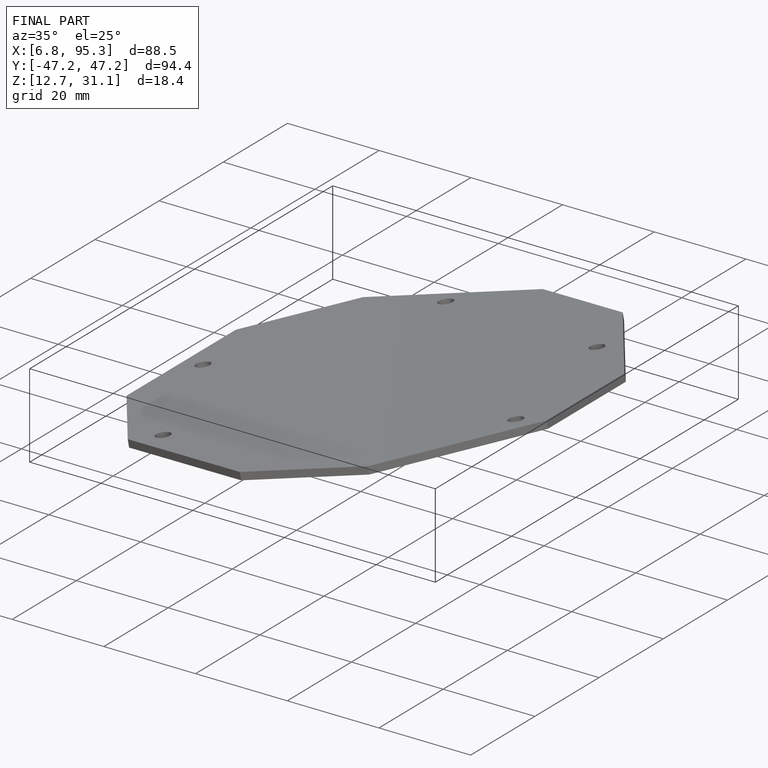
[diagram: finished part — iso view with bounding-box wireframe]
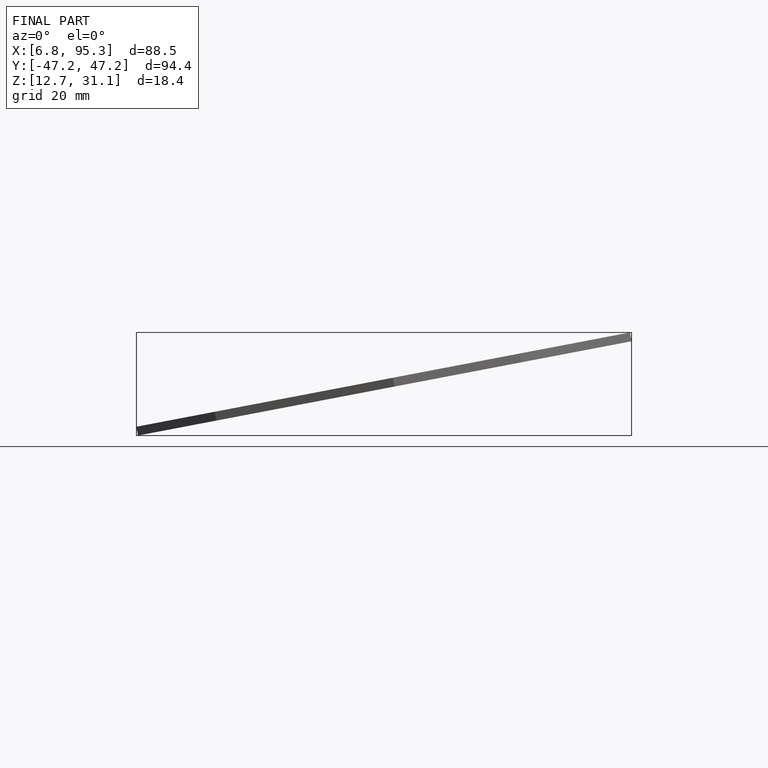
[diagram: finished part — front view with bounding-box wireframe]
